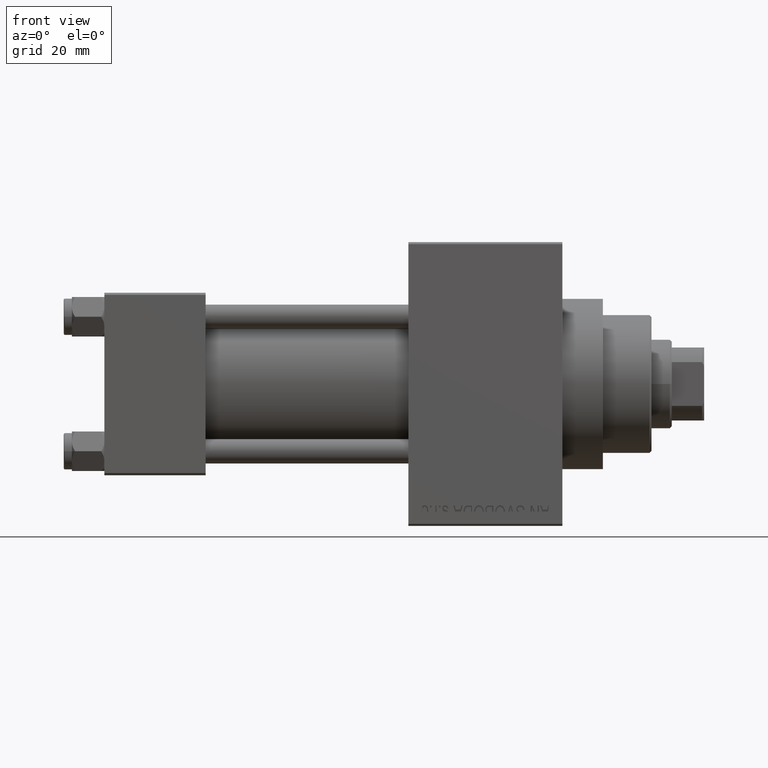
[diagram: clean part render]
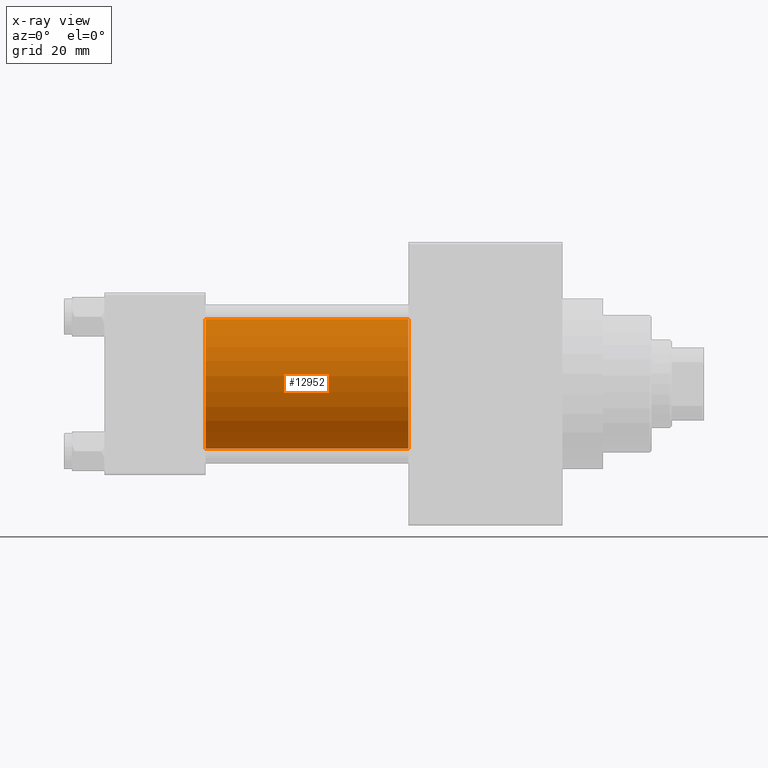
[diagram: x-ray — body ghosted, one internal face saturated and labeled with its STEP entity id]
A machine part, front view, then the same camera in x-ray: the body is ghosted and one INTERNAL B-rep face — a face not visible from any outside direction — is saturated and labeled: STEP entity #12952.
In plain terms, the highlighted cylindrical surface (partial cylindrical patch) has radius 16 mm, axis along (-1, -0, -0).
Its self-contained STEP definition (entity closure, byte-faithful):
#392 = DIRECTION ( 'NONE',  ( -1.000000000000000000, -0.000000000000000000, -0.000000000000000000 ) ) ;
#1906 = DIRECTION ( 'NONE',  ( 1.000000000000000000, 0.000000000000000000, 0.000000000000000000 ) ) ;
#2819 = FACE_OUTER_BOUND ( 'NONE', #41347, .T. ) ;
#3364 = CARTESIAN_POINT ( 'NONE',  ( 75.00000000000001421, -2.602085213965210642E-15, 16.00000000000000000 ) ) ;
#3485 = DIRECTION ( 'NONE',  ( 0.000000000000000000, 0.000000000000000000, -1.000000000000000000 ) ) ;
#5641 = DIRECTION ( 'NONE',  ( -1.000000000000000000, -0.000000000000000000, -0.000000000000000000 ) ) ;
#6436 = ORIENTED_EDGE ( 'NONE', *, *, #9172, .F. ) ;
#6854 = DIRECTION ( 'NONE',  ( 0.000000000000000000, 0.000000000000000000, -1.000000000000000000 ) ) ;
#8205 = CARTESIAN_POINT ( 'NONE',  ( 25.00000000000000000, -2.602085213965210642E-15, 16.00000000000000000 ) ) ;
#9172 = EDGE_CURVE ( 'NONE', #42231, #41181, #15565, .T. ) ;
#10535 = DIRECTION ( 'NONE',  ( 0.000000000000000000, 0.000000000000000000, 1.000000000000000000 ) ) ;
#12952 = ADVANCED_FACE ( 'NONE', ( #2819 ), #31985, .F. ) ;
#15565 = CIRCLE ( 'NONE', #26697, 16.00000000000000000 ) ;
#19600 = VECTOR ( 'NONE', #392, 1000.000000000000000 ) ;
#20371 = EDGE_CURVE ( 'NONE', #36249, #42231, #35175, .T. ) ;
#24914 = DIRECTION ( 'NONE',  ( -1.000000000000000000, -0.000000000000000000, -0.000000000000000000 ) ) ;
#25783 = CARTESIAN_POINT ( 'NONE',  ( 75.00000000000001421, -6.426503353294456087E-16, -16.00000000000000000 ) ) ;
#26011 = AXIS2_PLACEMENT_3D ( 'NONE', #43440, #5641, #10535 ) ;
#26697 = AXIS2_PLACEMENT_3D ( 'NONE', #48137, #1906, #6854 ) ;
#28695 = VECTOR ( 'NONE', #24914, 1000.000000000000000 ) ;
#30087 = CARTESIAN_POINT ( 'NONE',  ( 75.00000000000001421, -2.602085213965210642E-15, 0.000000000000000000 ) ) ;
#31985 = CYLINDRICAL_SURFACE ( 'NONE', #26011, 16.00000000000000000 ) ;
#33558 = EDGE_CURVE ( 'NONE', #47815, #41181, #36601, .T. ) ;
#33610 = CIRCLE ( 'NONE', #38404, 16.00000000000000000 ) ;
#34432 = CARTESIAN_POINT ( 'NONE',  ( 75.00000000000001421, -2.602085213965210642E-15, 16.00000000000000000 ) ) ;
#35175 = LINE ( 'NONE', #34432, #19600 ) ;
#36214 = CARTESIAN_POINT ( 'NONE',  ( 25.00000000000000000, -6.426503353294456087E-16, -16.00000000000000000 ) ) ;
#36249 = VERTEX_POINT ( 'NONE', #3364 ) ;
#36256 = ORIENTED_EDGE ( 'NONE', *, *, #20371, .F. ) ;
#36601 = LINE ( 'NONE', #43592, #28695 ) ;
#38404 = AXIS2_PLACEMENT_3D ( 'NONE', #30087, #48736, #3485 ) ;
#38690 = EDGE_CURVE ( 'NONE', #36249, #47815, #33610, .T. ) ;
#41181 = VERTEX_POINT ( 'NONE', #36214 ) ;
#41347 = EDGE_LOOP ( 'NONE', ( #43252, #48595, #6436, #36256 ) ) ;
#42231 = VERTEX_POINT ( 'NONE', #8205 ) ;
#43252 = ORIENTED_EDGE ( 'NONE', *, *, #38690, .T. ) ;
#43440 = CARTESIAN_POINT ( 'NONE',  ( 75.00000000000001421, -2.602085213965210642E-15, 0.000000000000000000 ) ) ;
#43592 = CARTESIAN_POINT ( 'NONE',  ( 75.00000000000001421, -6.426503353294456087E-16, -16.00000000000000000 ) ) ;
#47815 = VERTEX_POINT ( 'NONE', #25783 ) ;
#48137 = CARTESIAN_POINT ( 'NONE',  ( 25.00000000000000000, -2.602085213965210642E-15, 0.000000000000000000 ) ) ;
#48595 = ORIENTED_EDGE ( 'NONE', *, *, #33558, .T. ) ;
#48736 = DIRECTION ( 'NONE',  ( 1.000000000000000000, 0.000000000000000000, 0.000000000000000000 ) ) ;